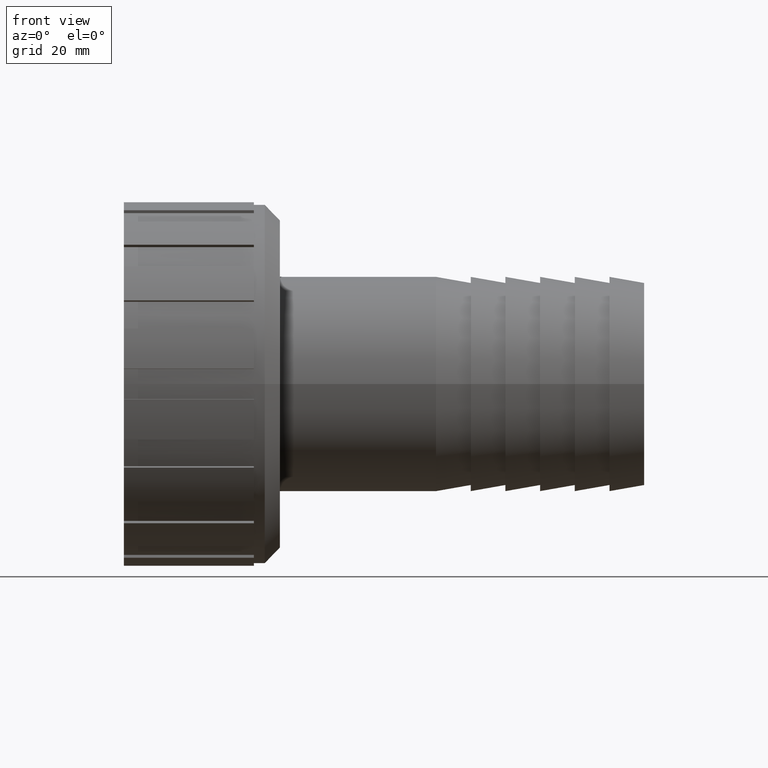
[diagram: clean part render]
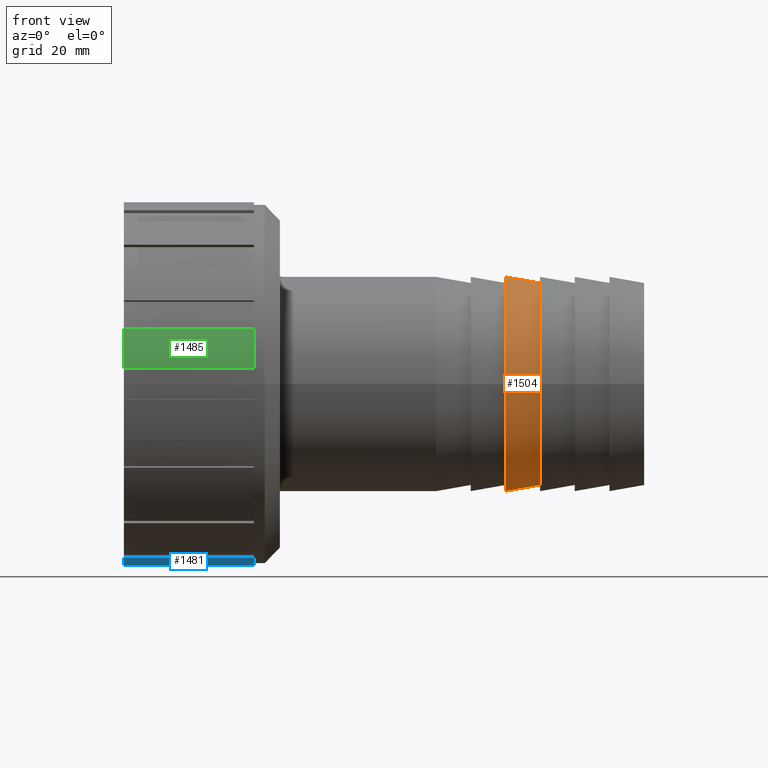
[diagram: same view with three faces highlighted in distinct colors, each labeled with its STEP entity id]
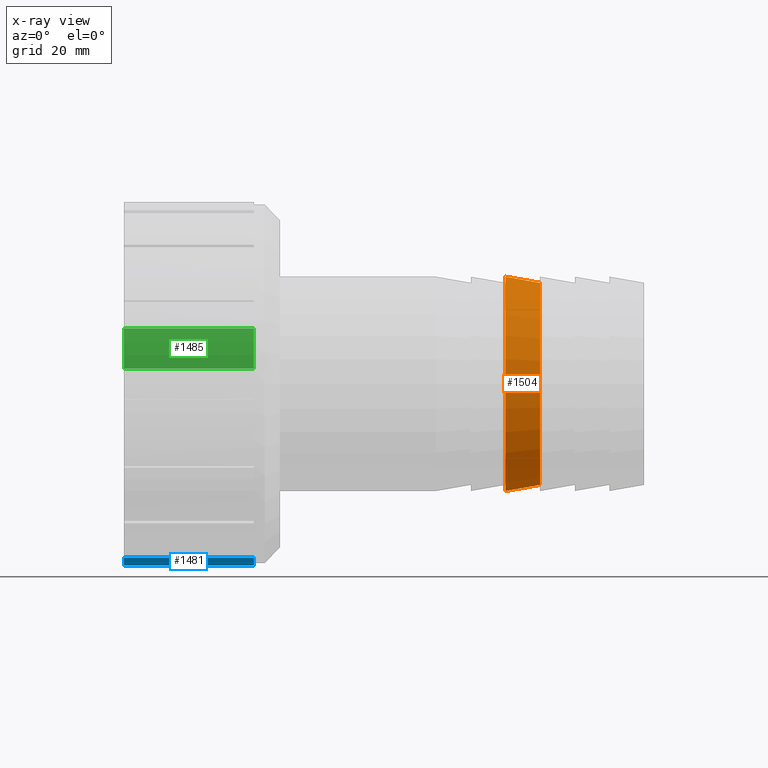
[diagram: x-ray of the same camera — body ghosted, the three highlighted faces saturated]
A machine part, front view with three faces highlighted in distinct colors.
The next image is the same camera in x-ray (body ghosted, the three faces saturated) — at least one of them is partly hidden behind the body in this view.
Their STEP definitions:

[orange] entity #1504 — the highlighted conical surface has half-angle 10 deg.
#19=CONICAL_SURFACE('',#1668,19.4298760957093,9.99999999999993);
#56=FACE_BOUND('',#322,.T.);
#139=CIRCLE('',#1667,18.8597521914186);
#140=CIRCLE('',#1669,20.);
#223=FACE_OUTER_BOUND('',#321,.T.);
#321=EDGE_LOOP('',(#1357));
#322=EDGE_LOOP('',(#1358));
#730=VERTEX_POINT('',#2568);
#731=VERTEX_POINT('',#2571);
#941=EDGE_CURVE('',#730,#730,#139,.T.);
#942=EDGE_CURVE('',#731,#731,#140,.T.);
#1357=ORIENTED_EDGE('',*,*,#941,.T.);
#1358=ORIENTED_EDGE('',*,*,#942,.F.);
#1504=ADVANCED_FACE('',(#223,#56),#19,.T.);
#1667=AXIS2_PLACEMENT_3D('',#2569,#2119,#2120);
#1668=AXIS2_PLACEMENT_3D('',#2570,#2121,#2122);
#1669=AXIS2_PLACEMENT_3D('',#2572,#2123,#2124);
#2119=DIRECTION('center_axis',(-1.,0.,0.));
#2120=DIRECTION('ref_axis',(0.,0.,1.));
#2121=DIRECTION('center_axis',(-1.,0.,0.));
#2122=DIRECTION('ref_axis',(0.,-1.,0.));
#2123=DIRECTION('center_axis',(-1.,0.,0.));
#2124=DIRECTION('ref_axis',(0.,0.,1.));
#2568=CARTESIAN_POINT('',(77.6,-18.8597521914186,0.));
#2569=CARTESIAN_POINT('Origin',(77.6,0.,0.));
#2570=CARTESIAN_POINT('Origin',(74.3666666666667,0.,0.));
#2571=CARTESIAN_POINT('',(71.1333333333333,-20.,0.));
#2572=CARTESIAN_POINT('Origin',(71.1333333333333,0.,0.));

[blue] entity #1481 — the highlighted cylindrical surface (partial cylindrical patch) has radius 33.9936 mm, axis along (-1, 0, 0).
#30=CYLINDRICAL_SURFACE('',#1632,33.9936);
#81=CIRCLE('',#1562,33.9936);
#111=CIRCLE('',#1601,33.9936);
#200=FACE_OUTER_BOUND('',#285,.T.);
#285=EDGE_LOOP('',(#1228,#1229,#1230,#1231));
#386=LINE('',#2266,#514);
#392=LINE('',#2278,#520);
#514=VECTOR('',#1762,24.25);
#520=VECTOR('',#1770,24.25);
#641=VERTEX_POINT('',#2262);
#643=VERTEX_POINT('',#2265);
#646=VERTEX_POINT('',#2272);
#648=VERTEX_POINT('',#2276);
#789=EDGE_CURVE('',#643,#641,#386,.T.);
#795=EDGE_CURVE('',#646,#648,#392,.T.);
#877=EDGE_CURVE('',#646,#641,#81,.T.);
#908=EDGE_CURVE('',#648,#643,#111,.T.);
#1228=ORIENTED_EDGE('',*,*,#789,.T.);
#1229=ORIENTED_EDGE('',*,*,#877,.F.);
#1230=ORIENTED_EDGE('',*,*,#795,.T.);
#1231=ORIENTED_EDGE('',*,*,#908,.T.);
#1481=ADVANCED_FACE('',(#200),#30,.T.);
#1562=AXIS2_PLACEMENT_3D('',#2440,#1903,#1904);
#1601=AXIS2_PLACEMENT_3D('',#2483,#1982,#1983);
#1632=AXIS2_PLACEMENT_3D('',#2518,#2046,#2047);
#1762=DIRECTION('',(-1.,0.,0.));
#1770=DIRECTION('',(1.,0.,0.));
#1903=DIRECTION('center_axis',(-1.,0.,0.));
#1904=DIRECTION('ref_axis',(0.,0.,1.));
#1982=DIRECTION('center_axis',(-1.,0.,0.));
#1983=DIRECTION('ref_axis',(0.,0.,1.));
#2046=DIRECTION('center_axis',(-1.,0.,0.));
#2047=DIRECTION('ref_axis',(0.,-1.,0.));
#2262=CARTESIAN_POINT('',(0.,-10.3463734930391,-32.3808183420762));
#2265=CARTESIAN_POINT('',(24.25,-10.3463734930391,-32.3808183420762));
#2266=CARTESIAN_POINT('',(12.125,-10.3463734930391,-32.3808183420762));
#2272=CARTESIAN_POINT('',(0.,-2.83279999999998,-33.8753610330576));
#2276=CARTESIAN_POINT('',(24.25,-2.83279999999998,-33.8753610330576));
#2278=CARTESIAN_POINT('',(12.125,-2.83279999999998,-33.8753610330576));
#2440=CARTESIAN_POINT('Origin',(0.,0.,0.));
#2483=CARTESIAN_POINT('Origin',(24.25,0.,0.));
#2518=CARTESIAN_POINT('Origin',(12.125,0.,0.));

[green] entity #1485 — the highlighted cylindrical surface (partial cylindrical patch) has radius 33.9936 mm, axis along (-1, 0, 0).
#34=CYLINDRICAL_SURFACE('',#1636,33.9936);
#89=CIRCLE('',#1570,33.9936);
#119=CIRCLE('',#1613,33.9936);
#204=FACE_OUTER_BOUND('',#289,.T.);
#289=EDGE_LOOP('',(#1244,#1245,#1246,#1247));
#354=LINE('',#2194,#482);
#360=LINE('',#2206,#488);
#482=VECTOR('',#1714,24.25);
#488=VECTOR('',#1722,24.25);
#609=VERTEX_POINT('',#2190);
#611=VERTEX_POINT('',#2193);
#614=VERTEX_POINT('',#2200);
#616=VERTEX_POINT('',#2204);
#757=EDGE_CURVE('',#611,#609,#354,.T.);
#763=EDGE_CURVE('',#614,#616,#360,.T.);
#885=EDGE_CURVE('',#614,#609,#89,.T.);
#916=EDGE_CURVE('',#616,#611,#119,.T.);
#1244=ORIENTED_EDGE('',*,*,#757,.T.);
#1245=ORIENTED_EDGE('',*,*,#885,.F.);
#1246=ORIENTED_EDGE('',*,*,#763,.T.);
#1247=ORIENTED_EDGE('',*,*,#916,.T.);
#1485=ADVANCED_FACE('',(#204),#34,.T.);
#1570=AXIS2_PLACEMENT_3D('',#2448,#1919,#1920);
#1613=AXIS2_PLACEMENT_3D('',#2495,#2006,#2007);
#1636=AXIS2_PLACEMENT_3D('',#2522,#2054,#2055);
#1714=DIRECTION('',(-1.,0.,0.));
#1722=DIRECTION('',(1.,0.,0.));
#1919=DIRECTION('center_axis',(-1.,0.,0.));
#1920=DIRECTION('ref_axis',(0.,0.,1.));
#2006=DIRECTION('center_axis',(-1.,0.,0.));
#2007=DIRECTION('ref_axis',(0.,0.,1.));
#2054=DIRECTION('center_axis',(-1.,0.,0.));
#2055=DIRECTION('ref_axis',(0.,-1.,0.));
#2190=CARTESIAN_POINT('',(0.,-32.3808183420762,10.3463734930391));
#2193=CARTESIAN_POINT('',(24.25,-32.3808183420762,10.3463734930391));
#2194=CARTESIAN_POINT('',(12.125,-32.3808183420762,10.3463734930391));
#2200=CARTESIAN_POINT('',(0.,-33.8753610330576,2.83279999999996));
#2204=CARTESIAN_POINT('',(24.25,-33.8753610330576,2.83279999999996));
#2206=CARTESIAN_POINT('',(12.125,-33.8753610330576,2.83279999999996));
#2448=CARTESIAN_POINT('Origin',(0.,0.,0.));
#2495=CARTESIAN_POINT('Origin',(24.25,0.,0.));
#2522=CARTESIAN_POINT('Origin',(12.125,0.,0.));